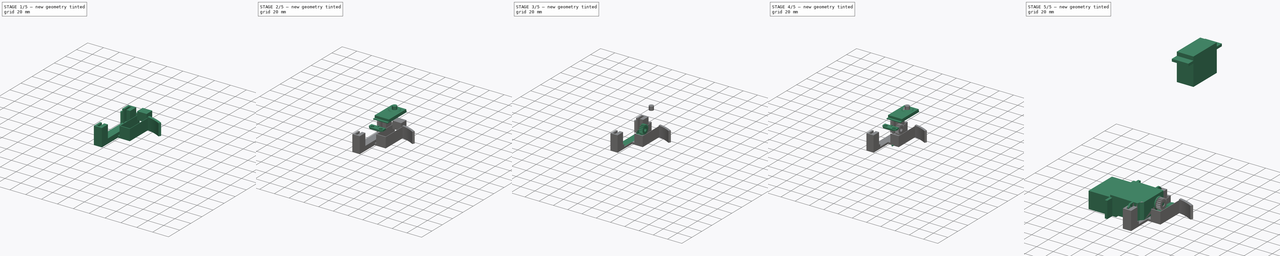
[diagram: build sequence overview — one tinted view per stage of 5, left to right]
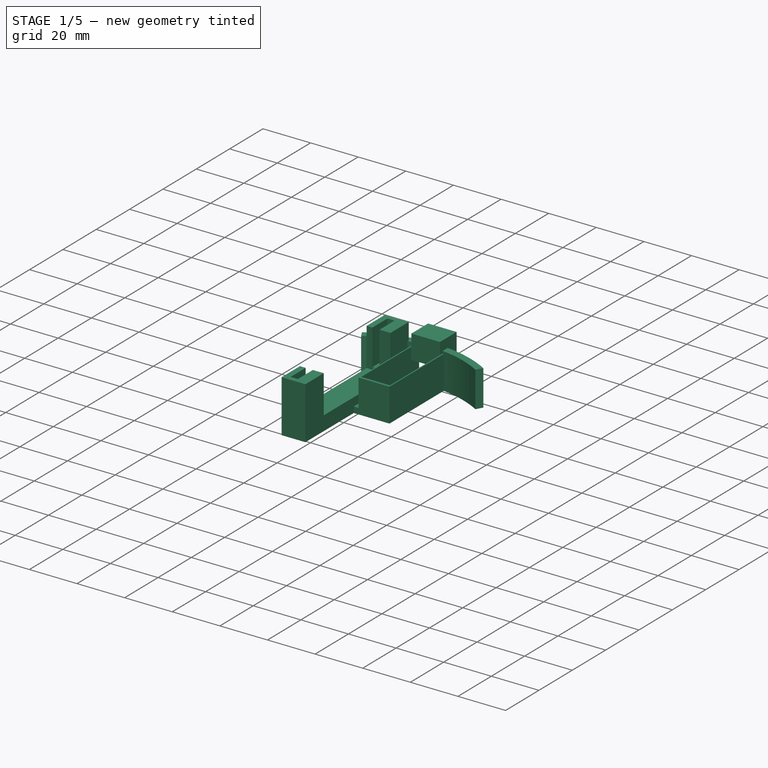
[diagram: stage 1 of 5 — iso view after this stage's code; geometry added in this stage tinted green]
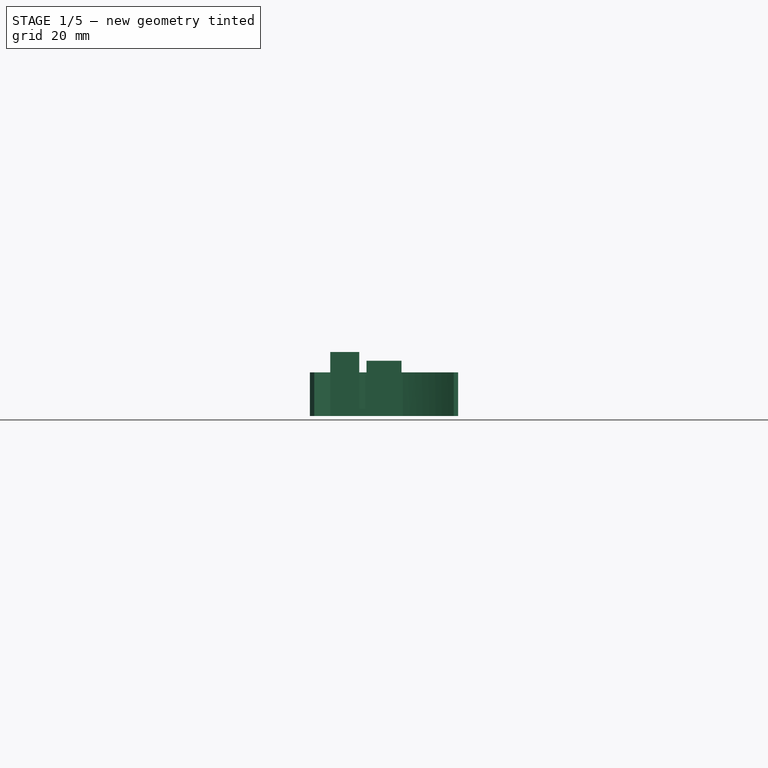
[diagram: stage 1 of 5 — front view after this stage's code; geometry added in this stage tinted green]
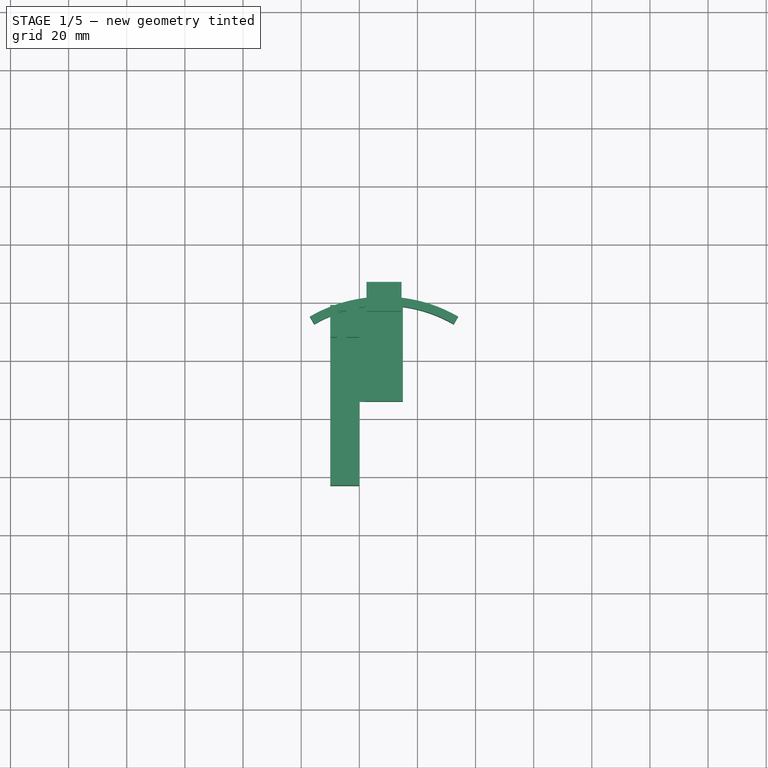
[diagram: stage 1 of 5 — top view after this stage's code; geometry added in this stage tinted green]
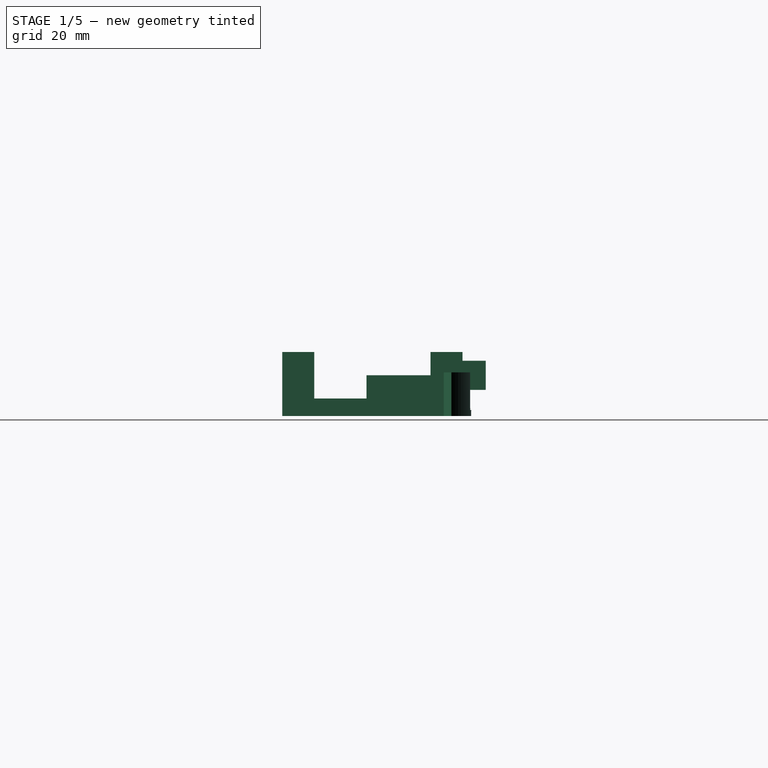
[diagram: stage 1 of 5 — right view after this stage's code; geometry added in this stage tinted green]
FCSTD DOCUMENT  (FreeCAD 0.16R4924 (Git))
Label: v4_german_servo_cutout_2
License: All rights reserved
LicenseURL: http://en.wikipedia.org/wiki/All_rights_reserved
objects: Part::Box×32, Part::Feature×27, Part::MultiFuse×17, Part::Cylinder×13, Part::Cut×12, Part::Mirroring×12, Part::Extrusion×5, Part::Cone×2, Sketcher::SketchObject×1, Part::Thickness×1, Part::MultiCommon×1, Part::FeaturePython×1, Part::Prism×1
note: 125 computed .brp shape members not serialized (recipe doc carries the construction recipe); baked Part::Feature solids carry a one-line shape summary decoded from their .brp

FEATURE [Part::Cylinder] Cylinder  label="bottle_wall"
  Angle = 60
  Height = 15
  Placement = pos=(8.5,-7,0) rot=(0,0,1;1.0472rad)
  Radius = 51
FEATURE [Part::Cylinder] Cylinder001  label="bottle_wall001"
  Angle = 60
  Height = 15
  Placement = pos=(8.5,-7,0) rot=(0,0,1;1.0472rad)
  Radius = 48
FEATURE [Part::Cut] Cut  label="bottle_wall_composite"
  Base = -> Cylinder
  Placement = pos=(0,-2,0) rot=(0,0,1;0rad)
  Tool = -> Cylinder001
FEATURE [Part::Feature] Common_cs  label="pin_cs"
  Placement = pos=(3.5,35,2) rot=(0,0,1;0rad)
  shape: bbox 10 x 2e-07 x 8 mm, 0 faces, 0 solids (baked)
FEATURE [Part::Extrusion] Extrude002
  Base = -> Common_cs
  Dir = (0,5,0)
  Solid = true
FEATURE [Part::Thickness] Thickness
  Faces = -> Extrude002 [Face7]
  Intersection = false
  Join = 0
  Mode = 0
  SelfIntersection = false
  Value = 1
FEATURE [Part::Feature] Common_cs001  label="pin_cs001"
  Placement = pos=(3.5,35,2) rot=(0,0,1;0rad)
  shape: bbox 10 x 2e-07 x 8 mm, 0 faces, 0 solids (baked)
FEATURE [Part::Extrusion] Extrude003
  Base = -> Common_cs001
  Dir = (0,5,0)
  Solid = true
FEATURE [Part::MultiFuse] Fusion  label="bolt_bottle_side_opening"
  Placement = pos=(0,-7,1) rot=(0,0,1;0rad)
  Shapes = -> [Thickness,Extrude002,Extrude003]
FEATURE [Part::Box] Box  label="pullBay"
  Height = 15
  Length = 12
  Placement = pos=(2.5,7,2) rot=(0,0,1;0rad)
  Width = 31
FEATURE [Part::Box] Box001  label="Case"
  Height = 14
  Length = 13
  Placement = pos=(2,6,0) rot=(0,0,1;0rad)
  Width = 34
FEATURE [Part::Cut] Cut001  label="cut bay from case"
  Base = -> Box001
  Tool = -> Box
FEATURE [Part::MultiFuse] Fusion001  label="wall plus case"
  Shapes = -> [Cut,Cut001]
FEATURE [Part::Cut] Cut002  label="hole cut out of case"
  Base = -> Fusion001
  Tool = -> Fusion
FEATURE [Part::Box] Box002  label="mount"
  Height = 22
  Length = 10
  Placement = pos=(-8,-23,0) rot=(0,0,1;0rad)
  Width = 62
FEATURE [Part::Box] Box003  label="Cube"
  Height = 20
  Length = 3
  Placement = pos=(-33.59,-21,4) rot=(0,0,1;0rad)
  Width = 58
FEATURE [Part::Box] Box004  label="Cube001"
  Height = 21
  Length = 33
  Placement = pos=(-59,-12,3) rot=(0,0,1;0rad)
  Width = 40
FEATURE [Part::MultiFuse] Fusion002
  Placement = pos=(28,0,3) rot=(0,0,1;0rad)
  Shapes = -> [Box003,Box004]
FEATURE [Part::Cut] Cut003
  Base = -> Box002
  Placement = pos=(-2,0,0) rot=(0,0,1;0rad)
  Tool = -> Fusion002
FEATURE [Part::Box] Box007  label="Cube002"
  Height = 2.5
  Length = 2
  Placement = pos=(0,6,0) rot=(0,0,1;0rad)
  Width = 34
FEATURE [Part::Box] Box008  label="cutout_1"
  Height = 10
  Length = 12
  Placement = pos=(2.5,37,9) rot=(0,0,1;0rad)
  Width = 10
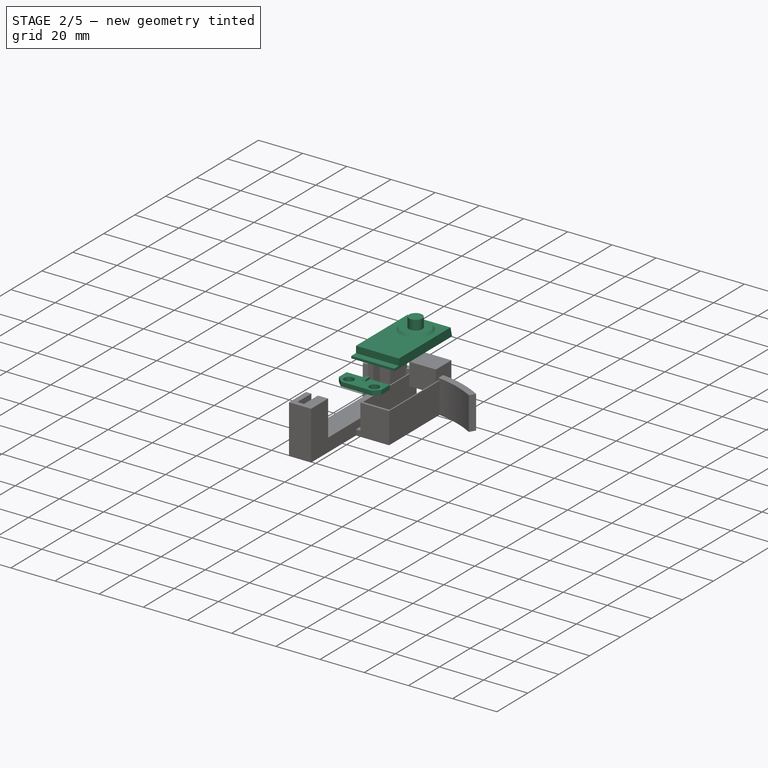
[diagram: stage 2 of 5 — iso view after this stage's code; geometry added in this stage tinted green]
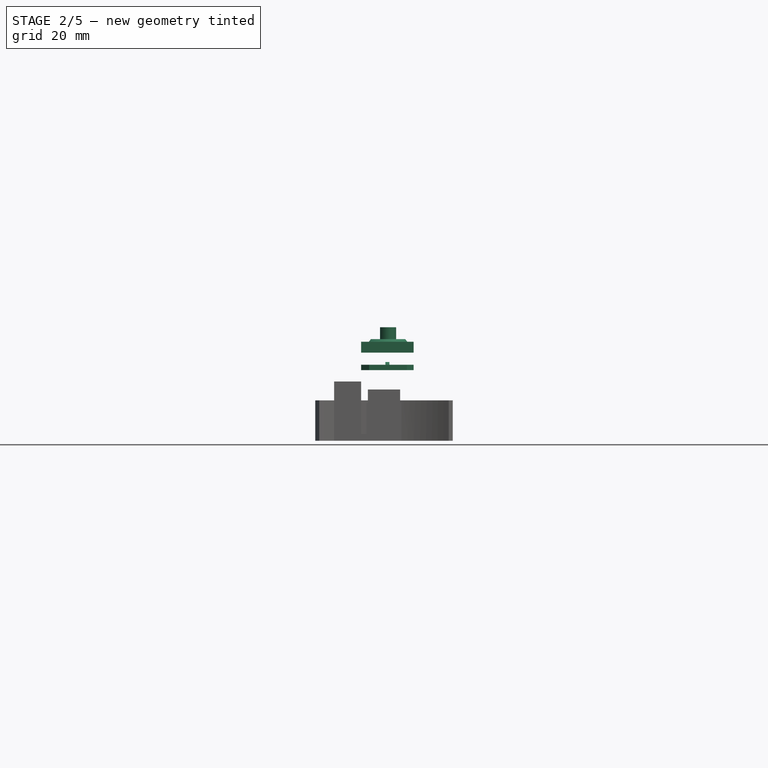
[diagram: stage 2 of 5 — front view after this stage's code; geometry added in this stage tinted green]
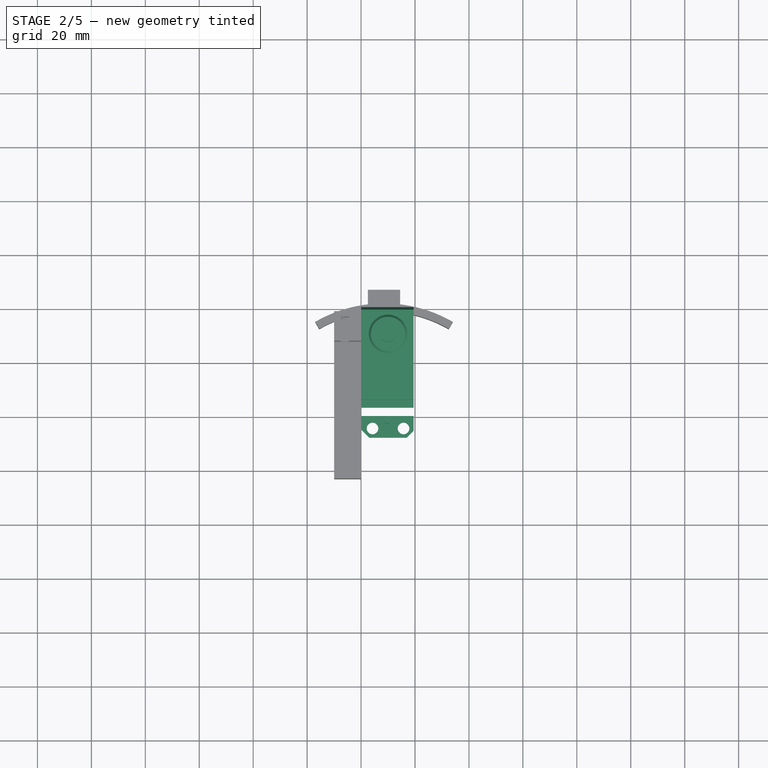
[diagram: stage 2 of 5 — top view after this stage's code; geometry added in this stage tinted green]
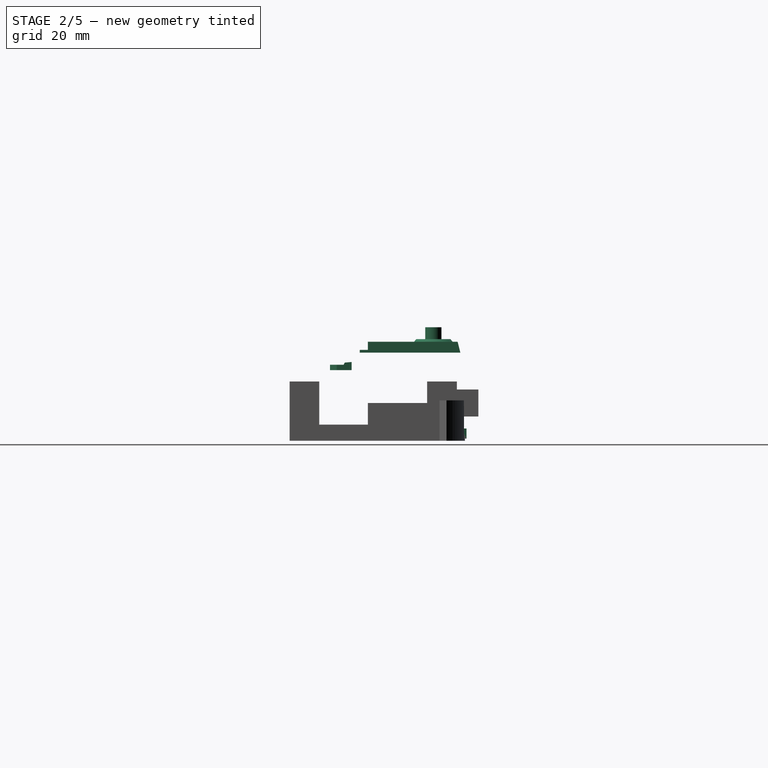
[diagram: stage 2 of 5 — right view after this stage's code; geometry added in this stage tinted green]
FEATURE [Part::Box] cube004
  Height = 2
  Length = 19.5
  Width = 8
FEATURE [Part::Box] cube005
  Height = 4
  Length = 19.5
  Placement = pos=(0,5,-1) rot=(0,0,1;0.785398rad)
  Width = 8
FEATURE [Part::Box] cube006
  Height = 4
  Length = 19.5
  Placement = pos=(17,8,-1) rot=(0,0,-1;0.785398rad)
  Width = 8
FEATURE [Part::Cylinder] cylinder002
  Angle = 360
  Height = 4
  Placement = pos=(4.25,4.6,-1) rot=(0,0,1;0rad)
  Radius = 2.15
FEATURE [Part::Cylinder] cylinder003
  Angle = 360
  Height = 4
  Placement = pos=(15.75,4.6,-1) rot=(0,0,1;0rad)
  Radius = 2.15
FEATURE [Part::MultiFuse] union001
  Shapes = -> [cube005,cube006,cylinder002,cylinder003]
FEATURE [Part::Cut] difference001
  Base = -> cube004
  Tool = -> union001
FEATURE [Part::Box] cube007
  Height = 0.8
  Length = 1.5
  Placement = pos=(9,0,2) rot=(0,0,1;0rad)
  Width = 2.5
FEATURE [Part::Feature] polyhedron002
  shape: bbox 1.5 x 2.5 x 0.2 mm, 5 faces (baked)
FEATURE [Part::Mirroring] mirr_polyhedron002  label="mirrored polyhedron002"
  Base = (0,0,0)
  Normal = (0,1,0)
  Placement = pos=(9,2.5,2.8) rot=(0,0,1;0rad)
  Source = -> polyhedron002
FEATURE [Part::Feature] polyhedron003
  shape: bbox 1.5 x 0.5 x 0.8 mm, 5 faces (baked)
FEATURE [Part::Mirroring] mirr_polyhedron003  label="mirrored polyhedron003"
  Base = (0,0,0)
  Normal = (0,1,0)
  Placement = pos=(9,3,2) rot=(0,0,1;0rad)
  Source = -> polyhedron003
FEATURE [Part::MultiFuse] Group001
  Shapes = -> [difference001,cube007,mirr_polyhedron002,mirr_polyhedron003]
FEATURE [Part::Mirroring] mirr_Group001  label="mirrored Group001"
  Base = (0,0,0)
  Normal = (0,1,0)
  Placement = pos=(0,0,26.2) rot=(0,0,1;0rad)
  Source = -> Group001
FEATURE [Part::Feature] polyhedron004
  shape: bbox 20.7 x 40.3 x 32.7 mm, 6 faces (baked)
FEATURE [Part::Box] cube008
  Height = 1
  Length = 19.5
  Placement = pos=(0,3,32.7) rot=(0,0,1;0rad)
  Width = 36.4
FEATURE [Part::Box] cube009
  Height = 3
  Length = 19.5
  Placement = pos=(0,6,33.7) rot=(0,0,1;0rad)
  Width = 33.3
FEATURE [Part::Feature] polyhedron005
  shape: bbox 19.5 x 1 x 4 mm, 5 faces (baked)
FEATURE [Part::Mirroring] mirr_polyhedron005  label="mirrored polyhedron005"
  Base = (0,0,0)
  Normal = (0,1,0)
  Placement = pos=(0,40.3,32.7) rot=(0,0,1;0rad)
  Source = -> polyhedron005
FEATURE [Part::Feature] polyhedron006
  Placement = pos=(0,0,32.7) rot=(0,0,1;0rad)
  shape: bbox 19.5 x 3 x 1 mm, 5 faces (baked)
FEATURE [Part::Feature] polyhedron007
  Placement = pos=(0,3,33.7) rot=(0,0,1;0rad)
  shape: bbox 19.5 x 3 x 3 mm, 5 faces (baked)
FEATURE [Part::Cone] cylinder004
  Angle = 360
  Height = 1
  Placement = pos=(10,30.3,36.7) rot=(0,0,1;0rad)
  Radius1 = 7.15
  Radius2 = 6.35
FEATURE [Part::Box] cube010
  Height = 3.75
  Length = 6.7
  Placement = pos=(6.7,40.6,0.8) rot=(0,0,1;0rad)
  Width = 2
FEATURE [Part::Cylinder] cylinder005
  Angle = 360
  Height = 5.4
  Placement = pos=(10,30.3,36.7) rot=(0,0,1;0rad)
  Radius = 3
FEATURE [Part::MultiFuse] Fusion003
  Shapes = -> [Cut003,Cut002]
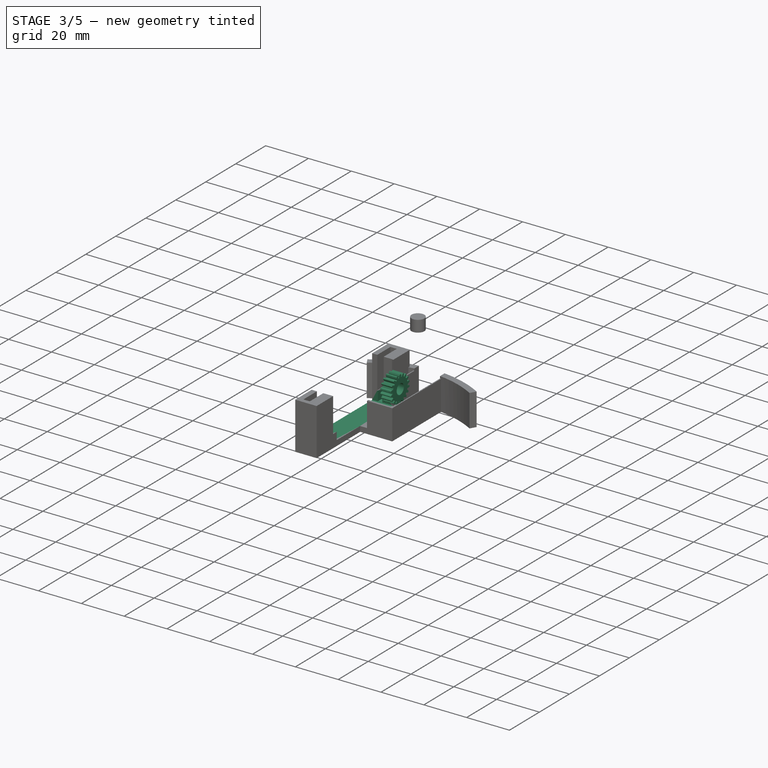
[diagram: stage 3 of 5 — iso view after this stage's code; geometry added in this stage tinted green]
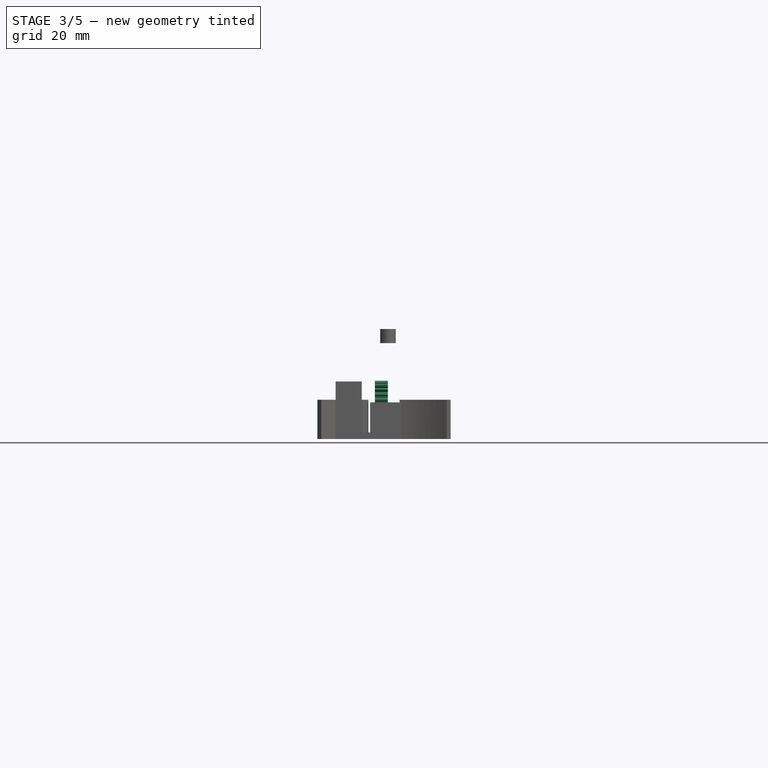
[diagram: stage 3 of 5 — front view after this stage's code; geometry added in this stage tinted green]
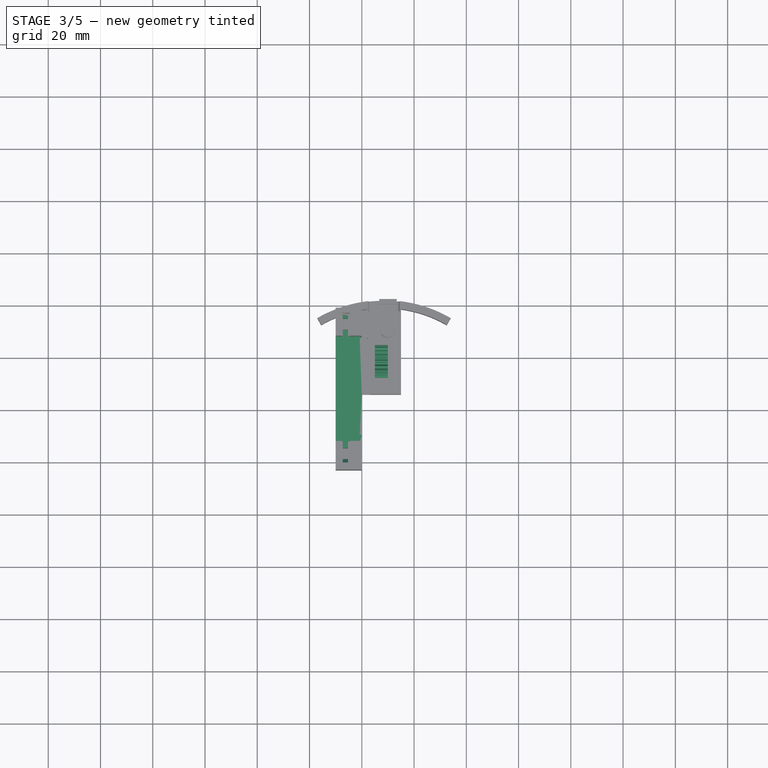
[diagram: stage 3 of 5 — top view after this stage's code; geometry added in this stage tinted green]
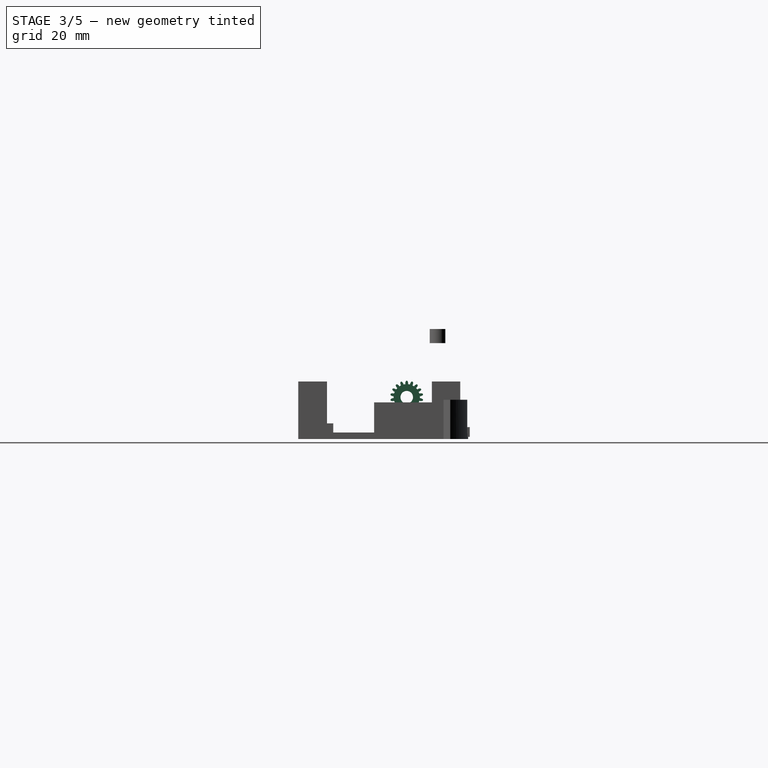
[diagram: stage 3 of 5 — right view after this stage's code; geometry added in this stage tinted green]
FEATURE [Part::Box] cube
  Height = 2
  Length = 19.5
  Width = 8
FEATURE [Part::Box] cube001
  Height = 4
  Length = 19.5
  Placement = pos=(0,5,-1) rot=(0,0,1;0.785398rad)
  Width = 8
FEATURE [Part::Box] cube002
  Height = 4
  Length = 19.5
  Placement = pos=(17,8,-1) rot=(0,0,-1;0.785398rad)
  Width = 8
FEATURE [Part::Cylinder] cylinder
  Angle = 360
  Height = 4
  Placement = pos=(4.25,4.6,-1) rot=(0,0,1;0rad)
  Radius = 2.15
FEATURE [Part::Cylinder] cylinder001
  Angle = 360
  Height = 4
  Placement = pos=(15.75,4.6,-1) rot=(0,0,1;0rad)
  Radius = 2.15
FEATURE [Part::MultiFuse] union
  Shapes = -> [cube001,cube002,cylinder,cylinder001]
FEATURE [Part::Cut] difference
  Base = -> cube
  Tool = -> union
FEATURE [Part::Box] cube003
  Height = 0.8
  Length = 1.5
  Placement = pos=(9,0,2) rot=(0,0,1;0rad)
  Width = 2.5
FEATURE [Part::Feature] polyhedron
  shape: bbox 1.5 x 2.5 x 0.2 mm, 5 faces (baked)
FEATURE [Part::Mirroring] mirr_polyhedron  label="mirrored polyhedron"
  Base = (0,0,0)
  Normal = (0,1,0)
  Placement = pos=(9,2.5,2.8) rot=(0,0,1;0rad)
  Source = -> polyhedron
FEATURE [Part::Feature] polyhedron001
  shape: bbox 1.5 x 0.5 x 0.8 mm, 5 faces (baked)
FEATURE [Part::Mirroring] mirr_polyhedron001  label="mirrored polyhedron001"
  Base = (0,0,0)
  Normal = (0,1,0)
  Placement = pos=(9,3,2) rot=(0,0,1;0rad)
  Source = -> polyhedron001
FEATURE [Part::MultiFuse] Group
  Placement = pos=(0,40.3,26.2) rot=(0,0,1;0rad)
  Shapes = -> [difference,cube003,mirr_polyhedron,mirr_polyhedron001]
FEATURE [Part::MultiFuse] Group002
  Placement = pos=(-33.5,-12,22) rot=(0,1,0;1.5708rad)
  Shapes = -> [Group,mirr_Group001,polyhedron004,cube008,cube009,mirr_polyhedron005,polyhedron006,polyhedron007,cylinder004,cube010,cylinder005]
FEATURE [Part::Cut] Cut004  label="pre_gap_fill"
  Base = -> Fusion003
  Tool = -> Group002
FEATURE [Part::Box] cube022
  Height = 3.75
  Length = 6.7
  Placement = pos=(6.7,40.6,0.8) rot=(0,0,1;0rad)
  Width = 2
FEATURE [Part::Cylinder] cylinder011
  Angle = 360
  Height = 5.4
  Placement = pos=(10,30.3,36.7) rot=(0,0,1;0rad)
  Radius = 3
FEATURE [Part::MultiFuse] Fusion006  label="before opening cutout"
  Shapes = -> [Cut004,Box007]
FEATURE [Part::FeaturePython] RefineLinearExtrude  # WARN: FeaturePython — macro-defined, semantics opaque (R4)
FEATURE [Part::Extrusion] LinearExtrude
  Base = -> RefineLinearExtrude
  Dir = (0,0,5)
  Solid = true
FEATURE [Part::Prism] prism
  Circumradius = 2.4
  Height = 7
  Placement = pos=(0,0,-1) rot=(0,0,1;0rad)
  Polygon = 50
FEATURE [Part::Cut] difference004  label="pinion"
  Base = -> LinearExtrude
  Placement = pos=(5,18.5,16) rot=(0,1,0;1.5708rad)
  Tool = -> prism
FEATURE [Part::Cut] Cut006  label="Complete cut"
  Base = -> Fusion006
  Tool = -> Box008
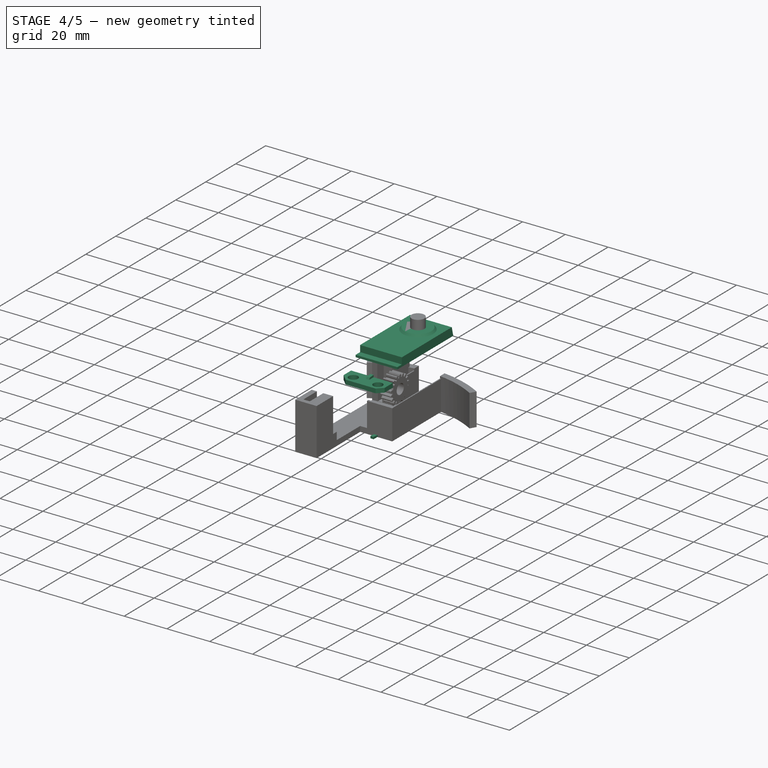
[diagram: stage 4 of 5 — iso view after this stage's code; geometry added in this stage tinted green]
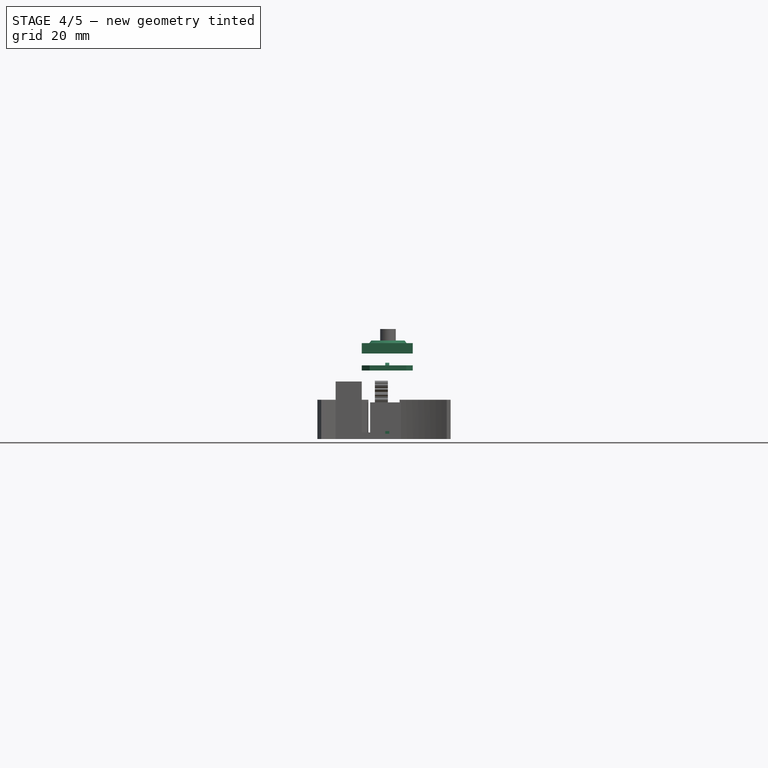
[diagram: stage 4 of 5 — front view after this stage's code; geometry added in this stage tinted green]
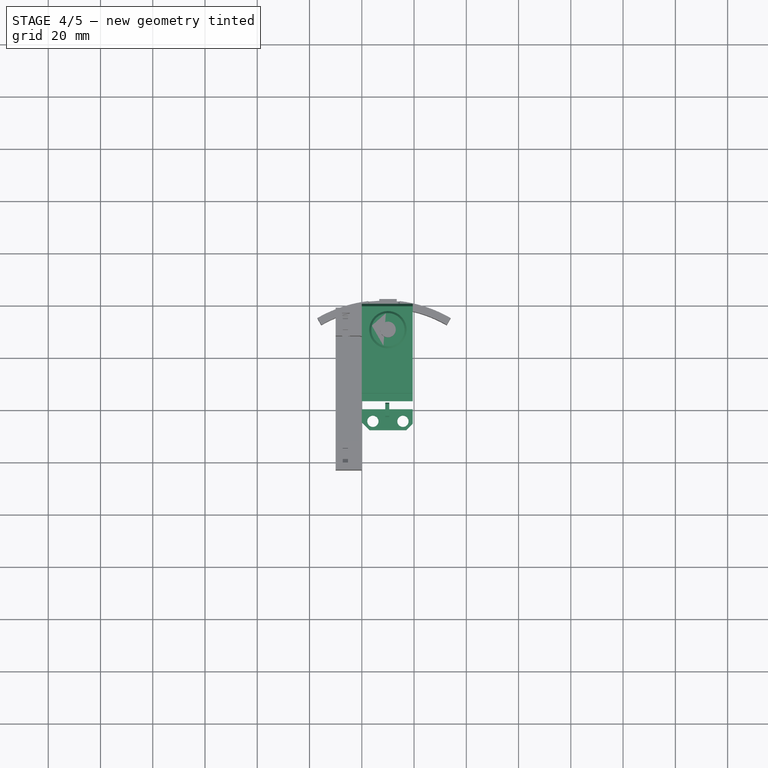
[diagram: stage 4 of 5 — top view after this stage's code; geometry added in this stage tinted green]
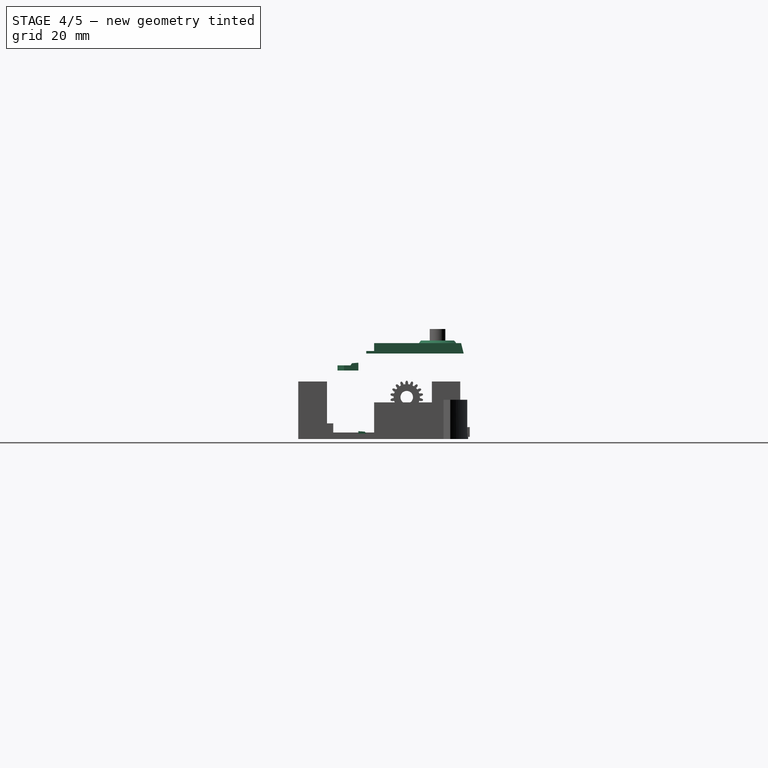
[diagram: stage 4 of 5 — right view after this stage's code; geometry added in this stage tinted green]
FEATURE [Part::Box] cube015
  Height = 0.8
  Length = 1.5
  Placement = pos=(9,0,2) rot=(0,0,1;0rad)
  Width = 2.5
FEATURE [Part::Feature] polyhedron017
  shape: bbox 1.5 x 2.5 x 0.2 mm, 5 faces (baked)
FEATURE [Part::Mirroring] mirr_polyhedron006  label="mirrored polyhedron017"
  Base = (0,0,0)
  Normal = (0,1,0)
  Placement = pos=(9,2.5,2.8) rot=(0,0,1;0rad)
  Source = -> polyhedron017
FEATURE [Part::Feature] polyhedron018
  shape: bbox 1.5 x 0.5 x 0.8 mm, 5 faces (baked)
FEATURE [Part::Mirroring] mirr_polyhedron007  label="mirrored polyhedron018"
  Base = (0,0,0)
  Normal = (0,1,0)
  Placement = pos=(9,3,2) rot=(0,0,1;0rad)
  Source = -> polyhedron018
FEATURE [Part::Box] cube016
  Height = 2
  Length = 19.5
  Width = 8
FEATURE [Part::Box] cube017
  Height = 4
  Length = 19.5
  Placement = pos=(0,5,-1) rot=(0,0,1;0.785398rad)
  Width = 8
FEATURE [Part::Box] cube018
  Height = 4
  Length = 19.5
  Placement = pos=(17,8,-1) rot=(0,0,-1;0.785398rad)
  Width = 8
FEATURE [Part::Cylinder] cylinder008
  Angle = 360
  Height = 4
  Placement = pos=(4.25,4.6,-1) rot=(0,0,1;0rad)
  Radius = 2.15
FEATURE [Part::Cylinder] cylinder009
  Angle = 360
  Height = 4
  Placement = pos=(15.75,4.6,-1) rot=(0,0,1;0rad)
  Radius = 2.15
FEATURE [Part::MultiFuse] union003
  Shapes = -> [cube017,cube018,cylinder008,cylinder009]
FEATURE [Part::Cut] difference003
  Base = -> cube016
  Tool = -> union003
FEATURE [Part::Box] cube019
  Height = 0.8
  Length = 1.5
  Placement = pos=(9,0,2) rot=(0,0,1;0rad)
  Width = 2.5
FEATURE [Part::Feature] polyhedron019
  shape: bbox 1.5 x 2.5 x 0.2 mm, 5 faces (baked)
FEATURE [Part::Mirroring] mirr_polyhedron008  label="mirrored polyhedron019"
  Base = (0,0,0)
  Normal = (0,1,0)
  Placement = pos=(9,2.5,2.8) rot=(0,0,1;0rad)
  Source = -> polyhedron019
FEATURE [Part::Feature] polyhedron020
  shape: bbox 1.5 x 0.5 x 0.8 mm, 5 faces (baked)
FEATURE [Part::Mirroring] mirr_polyhedron009  label="mirrored polyhedron020"
  Base = (0,0,0)
  Normal = (0,1,0)
  Placement = pos=(9,3,2) rot=(0,0,1;0rad)
  Source = -> polyhedron020
FEATURE [Part::MultiFuse] Group004
  Shapes = -> [difference003,cube019,mirr_polyhedron008,mirr_polyhedron009]
FEATURE [Part::Mirroring] mirr_Group  label="mirrored Group004"
  Base = (0,0,0)
  Normal = (0,1,0)
  Placement = pos=(0,0,26.2) rot=(0,0,1;0rad)
  Source = -> Group004
FEATURE [Part::Feature] polyhedron021
  shape: bbox 20.7 x 40.3 x 32.7 mm, 6 faces (baked)
FEATURE [Part::Box] cube020
  Height = 1
  Length = 19.5
  Placement = pos=(0,3,32.7) rot=(0,0,1;0rad)
  Width = 36.4
FEATURE [Part::Box] cube021
  Height = 3
  Length = 19.5
  Placement = pos=(0,6,33.7) rot=(0,0,1;0rad)
  Width = 33.3
FEATURE [Part::Feature] polyhedron022
  shape: bbox 19.5 x 1 x 4 mm, 5 faces (baked)
FEATURE [Part::Mirroring] mirr_polyhedron010  label="mirrored polyhedron022"
  Base = (0,0,0)
  Normal = (0,1,0)
  Placement = pos=(0,40.3,32.7) rot=(0,0,1;0rad)
  Source = -> polyhedron022
FEATURE [Part::Feature] polyhedron023
  Placement = pos=(0,0,32.7) rot=(0,0,1;0rad)
  shape: bbox 19.5 x 3 x 1 mm, 5 faces (baked)
FEATURE [Part::Feature] polyhedron024
  Placement = pos=(0,3,33.7) rot=(0,0,1;0rad)
  shape: bbox 19.5 x 3 x 3 mm, 5 faces (baked)
FEATURE [Part::Cone] cylinder010
  Angle = 360
  Height = 1
  Placement = pos=(10,30.3,36.7) rot=(0,0,1;0rad)
  Radius1 = 7.15
  Radius2 = 6.35
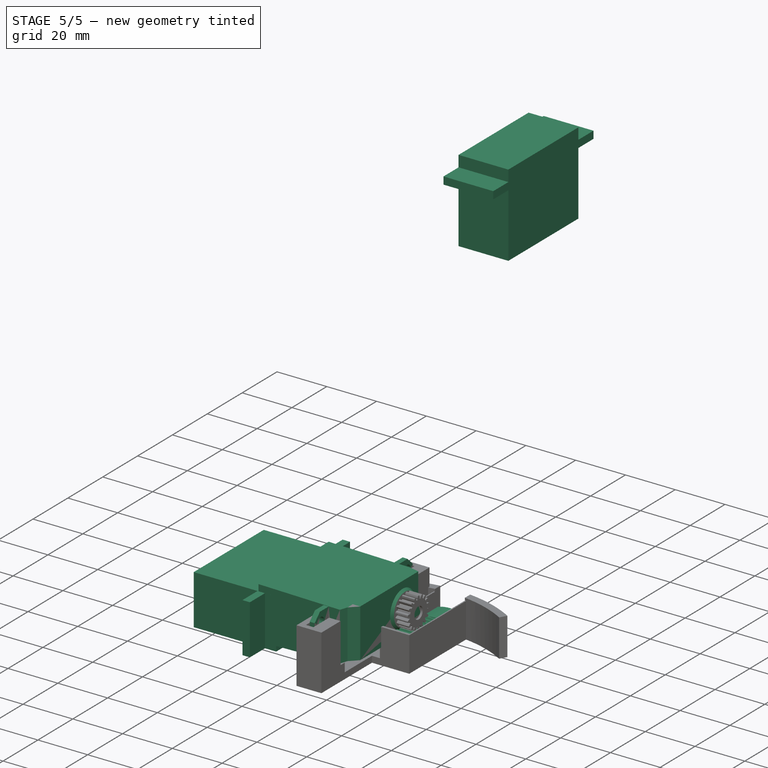
[diagram: stage 5 of 5 — iso view after this stage's code; geometry added in this stage tinted green]
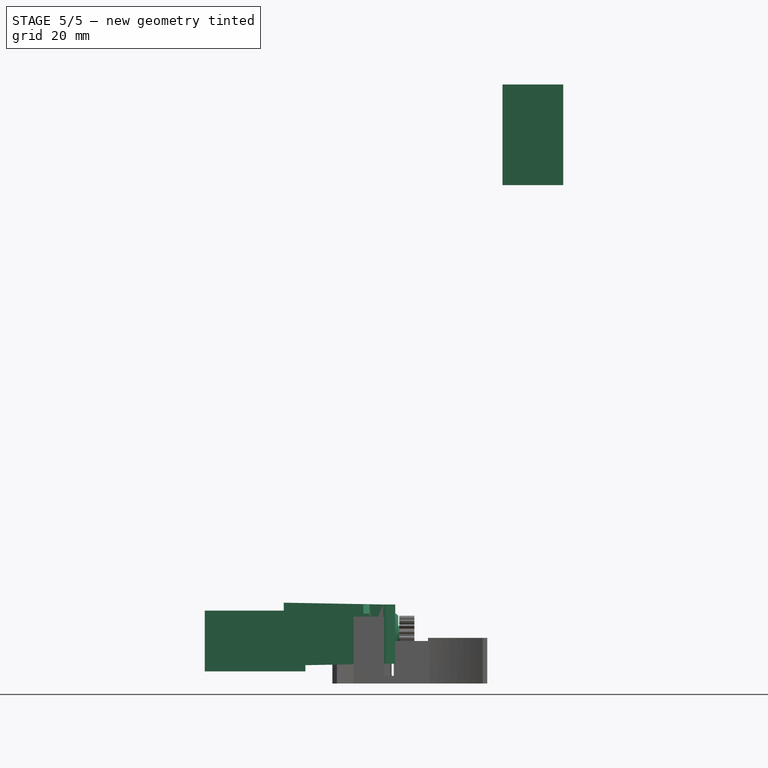
[diagram: stage 5 of 5 — front view after this stage's code; geometry added in this stage tinted green]
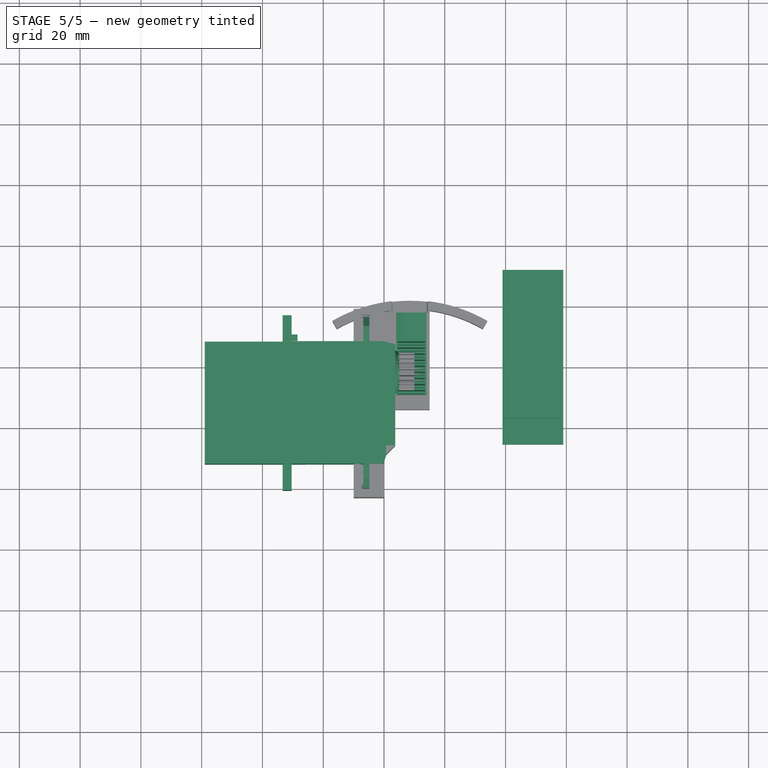
[diagram: stage 5 of 5 — top view after this stage's code; geometry added in this stage tinted green]
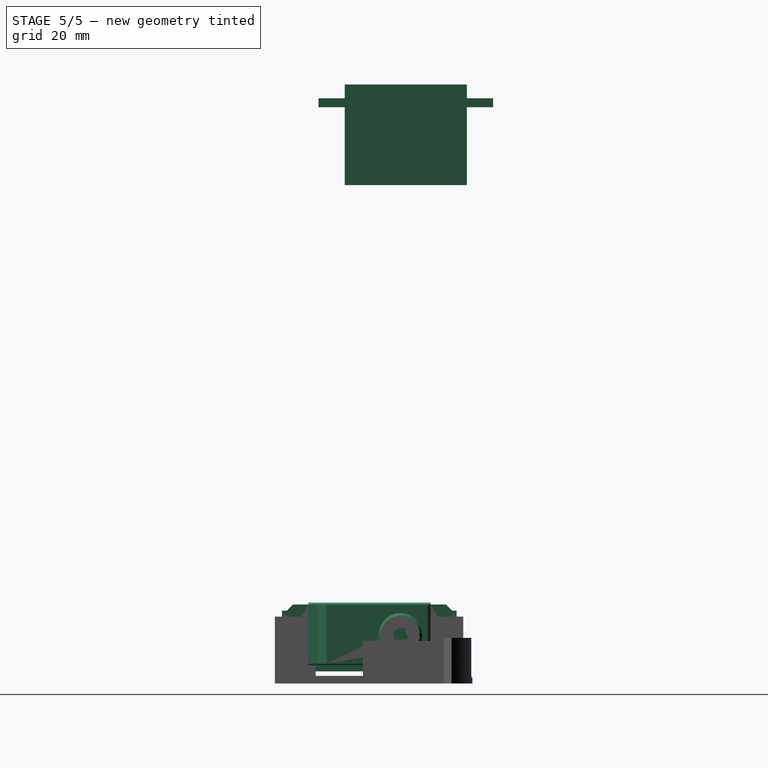
[diagram: stage 5 of 5 — right view after this stage's code; geometry added in this stage tinted green]
FEATURE [Sketcher::SketchObject] Sketch001
  Placement = pos=(0,0,0) rot=(0.57735,0.57735,0.57735;2.0944rad)
  sketch-geometry (8):
    g0: LineSegment StartX=0 StartY=33.1349 StartZ=0 EndX=40.1753 EndY=33.1349 EndZ=0
    g1: LineSegment StartX=40.1753 StartY=33.1349 StartZ=0 EndX=40.1753 EndY=0 EndZ=0
    g2: LineSegment StartX=40.1753 StartY=0 StartZ=0 EndX=0 EndY=0 EndZ=0
    g3: LineSegment StartX=0 StartY=0 StartZ=0 EndX=0 EndY=33.1349 EndZ=0
    g4: LineSegment StartX=-8.65512 StartY=28.6136 StartZ=0 EndX=48.8304 EndY=28.6136 EndZ=0
    g5: LineSegment StartX=48.8304 StartY=28.6136 StartZ=0 EndX=48.8304 EndY=25.6424 EndZ=0
    g6: LineSegment StartX=48.8304 StartY=25.6424 StartZ=0 EndX=-8.65512 EndY=25.6424 EndZ=0
    g7: LineSegment StartX=-8.65512 StartY=25.6424 StartZ=0 EndX=-8.65512 EndY=28.6136 EndZ=0
  constraints (18):
    c: Coincident(g0,g1)
    c: Coincident(g1,g2)
    c: Coincident(g2,g3)
    c: Coincident(g3,g0)
    c: Horizontal(g0)
    c: Horizontal(g2)
    c: Vertical(g1)
    c: Vertical(g3)
    c: PointOnObject(g0,g-2)
    c: PointOnObject(g1,g-1)
    c: Coincident(g4,g5)
    c: Coincident(g5,g6)
    c: Coincident(g6,g7)
    c: Coincident(g7,g4)
    c: Horizontal(g4)
    c: Horizontal(g6)
    c: Vertical(g5)
    c: Vertical(g7)
FEATURE [Part::Extrusion] Extrude  label="servo_outline"
  Base = -> Sketch001
  Dir = (20,0,0)
  Placement = pos=(-59,-12,24) rot=(0,1,0;1.5708rad)
  Solid = true
FEATURE [Part::Extrusion] Extrude001
  Base = -> Sketch001
  Dir = (20,0,0)
  Placement = pos=(39,0,164) rot=(0,0,1;0rad)
  Solid = true
FEATURE [Part::Cylinder] Cylinder002  label="rounded_top"
  Angle = 360
  Height = 40
  Placement = pos=(5,35,-7) rot=(1,0,0;1.5708rad)
  Radius = 15
FEATURE [Part::Box] Box005  label="pin"
  Height = 8
  Length = 10
  Width = 27
FEATURE [Part::MultiCommon] Common  label="rounded pin"
  Shapes = -> [Cylinder002,Box005]
FEATURE [Part::Box] Box006  label="flat_top"
  Height = 10
  Length = 10
  Placement = pos=(0,0,7) rot=(0,0,1;0rad)
  Width = 18
FEATURE [Part::Cut] Cut005
  Base = -> Common
  Placement = pos=(0,11,0) rot=(0,0,1;0rad)
  Tool = -> Box006
FEATURE [Part::Box] cube011
  Height = 5
  Length = 18
  Placement = pos=(-12,-4.5,-2.5) rot=(0,0,1;0rad)
  Width = 9
FEATURE [Part::Feature] polyhedron008
  Placement = pos=(-11.2451,0,2.5) rot=(0,0,1;0rad)
  shape: bbox 1.51 x 9 x 1.337 mm, 6 faces (baked)
FEATURE [Part::Feature] polyhedron009
  Placement = pos=(-9.24512,0,2.5) rot=(0,0,1;0rad)
  shape: bbox 1.51 x 9 x 1.337 mm, 6 faces (baked)
FEATURE [Part::Feature] polyhedron010
  Placement = pos=(-7.24512,0,2.5) rot=(0,0,1;0rad)
  shape: bbox 1.51 x 9 x 1.337 mm, 6 faces (baked)
FEATURE [Part::Feature] polyhedron011
  Placement = pos=(-5.24512,0,2.5) rot=(0,0,1;0rad)
  shape: bbox 1.51 x 9 x 1.337 mm, 6 faces (baked)
FEATURE [Part::Feature] polyhedron012
  Placement = pos=(-3.24512,0,2.5) rot=(0,0,1;0rad)
  shape: bbox 1.51 x 9 x 1.337 mm, 6 faces (baked)
FEATURE [Part::Feature] polyhedron013
  Placement = pos=(-1.24512,0,2.5) rot=(0,0,1;0rad)
  shape: bbox 1.51 x 9 x 1.337 mm, 6 faces (baked)
FEATURE [Part::Feature] polyhedron014
  Placement = pos=(0.754882,0,2.5) rot=(0,0,1;0rad)
  shape: bbox 1.51 x 9 x 1.337 mm, 6 faces (baked)
FEATURE [Part::Feature] polyhedron015
  Placement = pos=(2.75488,0,2.5) rot=(0,0,1;0rad)
  shape: bbox 1.51 x 9 x 1.337 mm, 6 faces (baked)
FEATURE [Part::Feature] polyhedron016
  Placement = pos=(4.75488,0,2.5) rot=(0,0,1;0rad)
  shape: bbox 1.51 x 9 x 1.337 mm, 6 faces (baked)
FEATURE [Part::MultiFuse] Fusion004  label="rack"
  Placement = pos=(5,23,4.5) rot=(0,0,1;1.5708rad)
  Shapes = -> [cube011,polyhedron010,polyhedron011,polyhedron012,polyhedron013,polyhedron008,polyhedron015,polyhedron009,polyhedron014,polyhedron016]
FEATURE [Part::MultiFuse] Fusion005  label="pin_3p2"
  Placement = pos=(4,0,2) rot=(0,0,1;0rad)
  Shapes = -> [Fusion004,Cut005]
FEATURE [Part::Box] cube012
  Height = 2
  Length = 19.5
  Width = 8
FEATURE [Part::Box] cube013
  Height = 4
  Length = 19.5
  Placement = pos=(0,5,-1) rot=(0,0,1;0.785398rad)
  Width = 8
FEATURE [Part::Box] cube014
  Height = 4
  Length = 19.5
  Placement = pos=(17,8,-1) rot=(0,0,-1;0.785398rad)
  Width = 8
FEATURE [Part::Cylinder] cylinder006
  Angle = 360
  Height = 4
  Placement = pos=(4.25,4.6,-1) rot=(0,0,1;0rad)
  Radius = 2.15
FEATURE [Part::Cylinder] cylinder007
  Angle = 360
  Height = 4
  Placement = pos=(15.75,4.6,-1) rot=(0,0,1;0rad)
  Radius = 2.15
FEATURE [Part::MultiFuse] union002
  Shapes = -> [cube013,cube014,cylinder006,cylinder007]
FEATURE [Part::Cut] difference002
  Base = -> cube012
  Tool = -> union002
FEATURE [Part::MultiFuse] Group003
  Placement = pos=(0,40.3,26.2) rot=(0,0,1;0rad)
  Shapes = -> [difference002,cube015,mirr_polyhedron006,mirr_polyhedron007]
FEATURE [Part::MultiFuse] Group005  label="servo_test_fit"
  Placement = pos=(-33,-12,26) rot=(0,1,0;1.5708rad)
  Shapes = -> [Group003,mirr_Group,polyhedron021,cube020,cube021,mirr_polyhedron010,polyhedron023,polyhedron024,cylinder010,cube022,cylinder011]
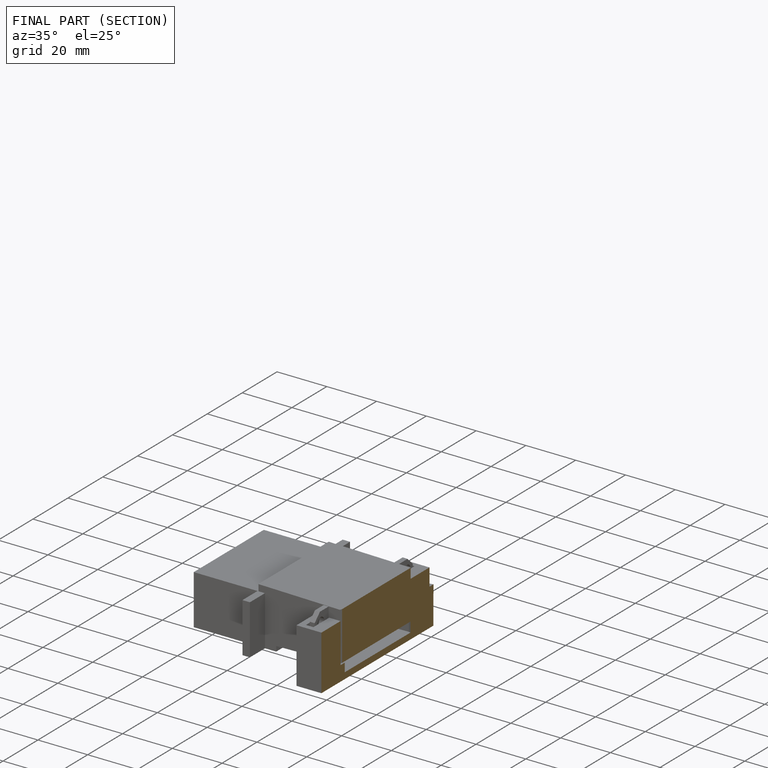
[diagram: finished part — half-section view (interior)]
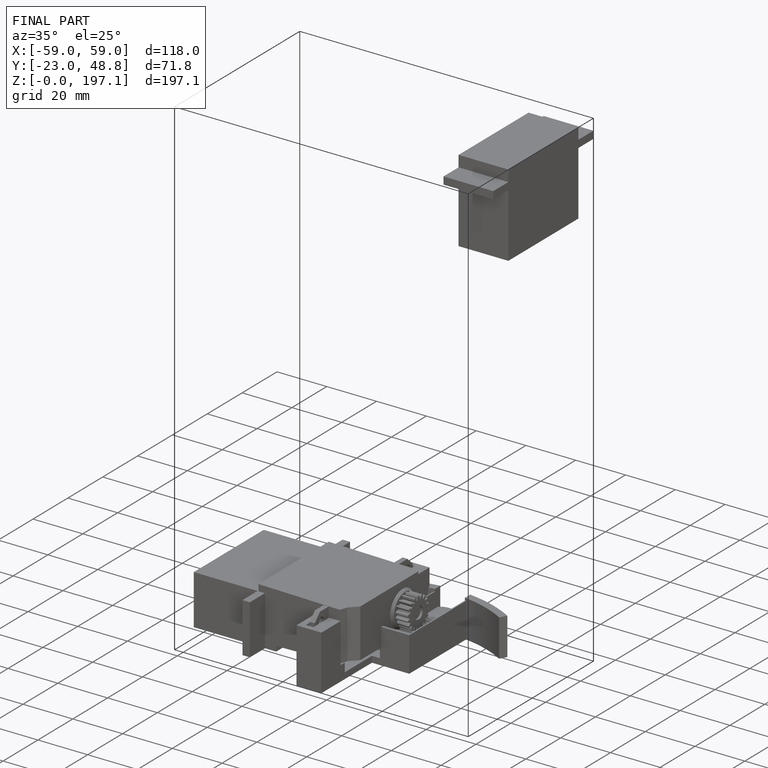
[diagram: finished part — iso view with bounding-box wireframe]
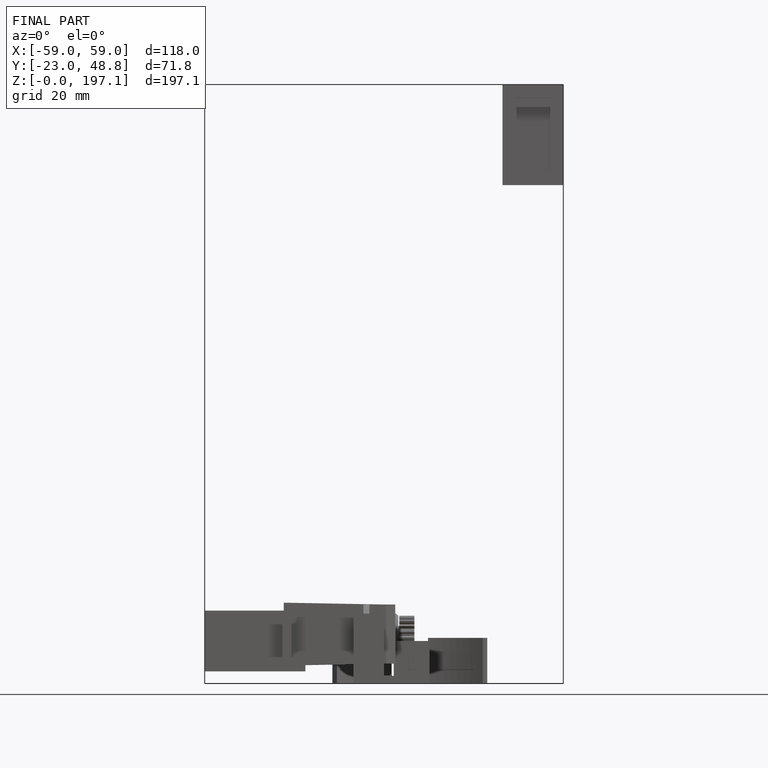
[diagram: finished part — front view with bounding-box wireframe]
